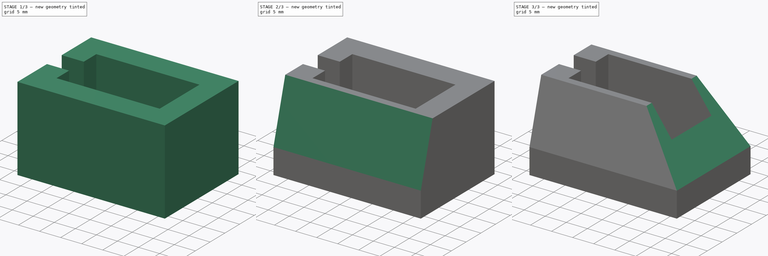
[diagram: build sequence overview — one tinted view per stage of 3, left to right]
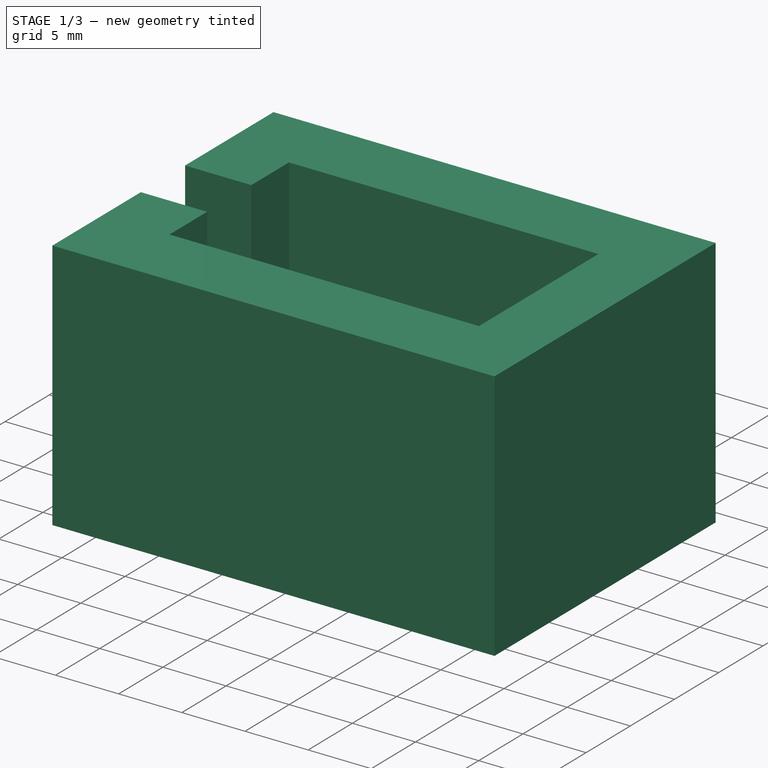
[diagram: stage 1 of 3 — iso view after this stage's code; geometry added in this stage tinted green]
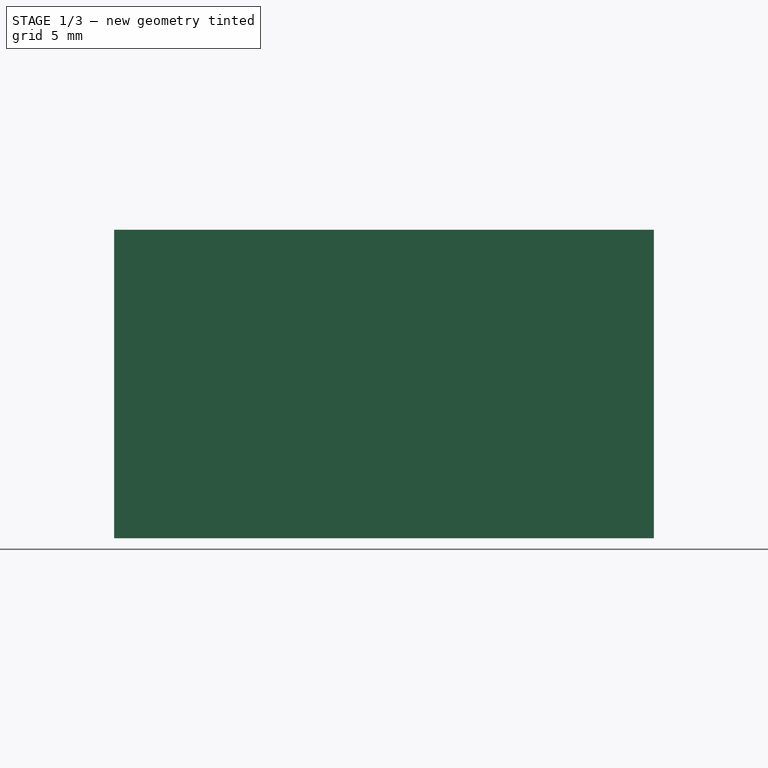
[diagram: stage 1 of 3 — front view after this stage's code; geometry added in this stage tinted green]
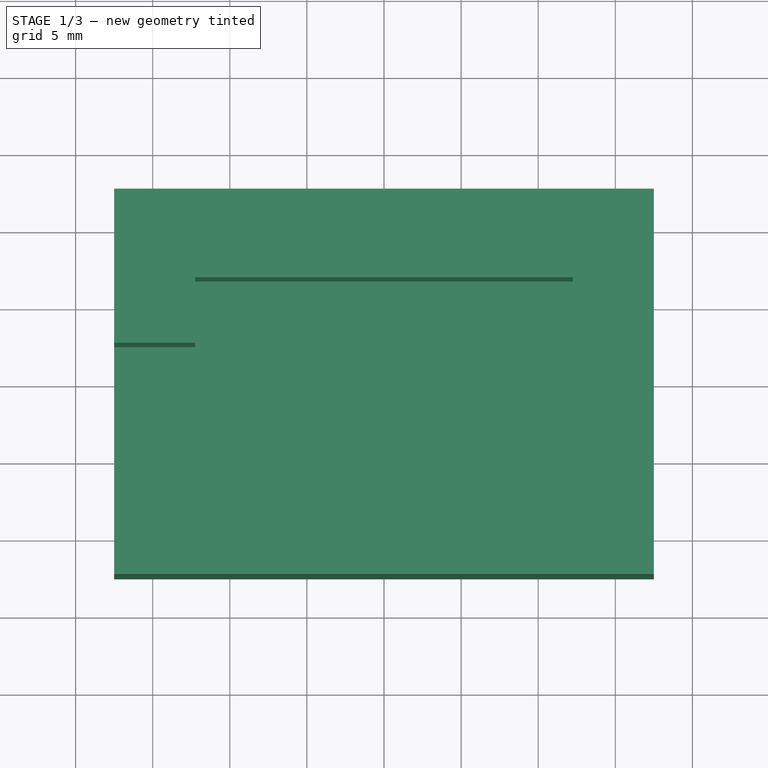
[diagram: stage 1 of 3 — top view after this stage's code; geometry added in this stage tinted green]
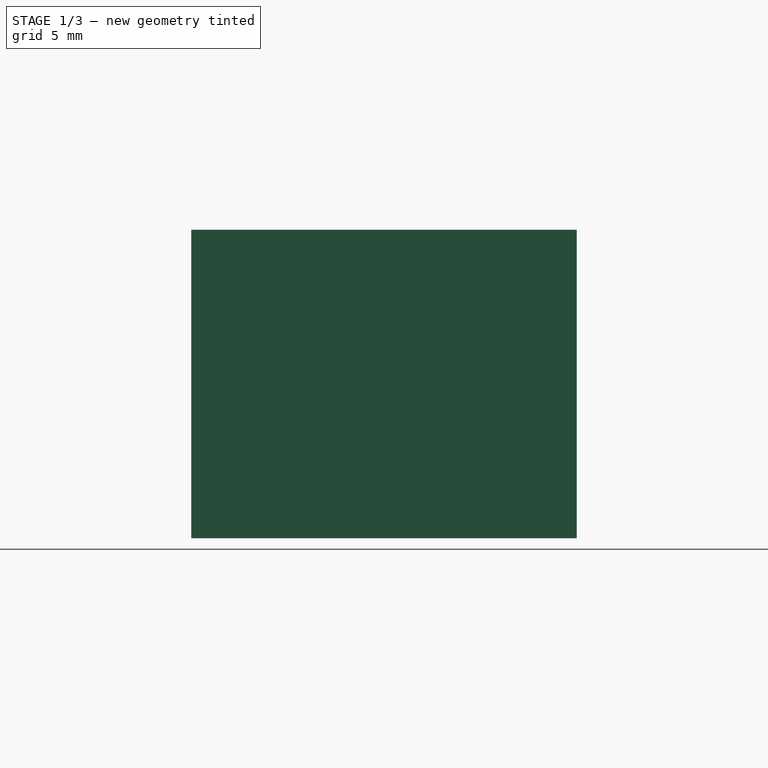
[diagram: stage 1 of 3 — right view after this stage's code; geometry added in this stage tinted green]
FCSTD DOCUMENT  (FreeCAD 1.0R39109 (Git))
Label: turret_base
License: All rights reserved
LicenseURL: https://en.wikipedia.org/wiki/All_rights_reserved
objects: Sketcher::SketchObject×3, PartDesign::Pocket×2, PartDesign::Chamfer×2, PartDesign::Pad×1, PartDesign::Body×1
note: 22 computed .brp shape members not serialized (recipe doc carries the construction recipe); baked Part::Feature solids carry a one-line shape summary decoded from their .brp

FEATURE [Sketcher::SketchObject] Sketch
  ArcFitTolerance = 1e-06
  AttachmentSupport = -> [XY_Plane]
  FullyConstrained = true
  MakeInternals = false
  MapMode = 5
  sketch-geometry (5):
    g0: LineSegment StartX=-17.5 StartY=-12.5 StartZ=0 EndX=17.5 EndY=-12.5 EndZ=0
    g1: LineSegment StartX=17.5 StartY=-12.5 StartZ=0 EndX=17.5 EndY=12.5 EndZ=0
    g2: LineSegment StartX=17.5 StartY=12.5 StartZ=0 EndX=-17.5 EndY=12.5 EndZ=0
    g3: LineSegment StartX=-17.5 StartY=12.5 StartZ=0 EndX=-17.5 EndY=-12.5 EndZ=0
    g4: GeomPoint [constr] X=0 Y=0 Z=0
  constraints (12):
    c: Coincident(g0,g1)
    c: Coincident(g1,g2)
    c: Coincident(g2,g3)
    c: Coincident(g3,g0)
    c: Horizontal(g0)
    c: Horizontal(g2)
    c: Vertical(g1)
    c: Vertical(g3)
    c: Symmetric(g2,g0,g4)
    c: Distance(g1,g3) = 35
    c: Distance(g0,g2) = 25
    c: Coincident(g4,g-1)
FEATURE [PartDesign::Pad] Pad
  Direction = (0,0,1)
  Length = 20
  Length2 = 10
  Profile = -> Sketch
  ReferenceAxis = -> Sketch [N_Axis]
  Refine = true
  Suppressed = false
  Type = 0
FEATURE [Sketcher::SketchObject] Sketch001
  ArcFitTolerance = 1e-06
  AttachmentSupport = -> [Pad]
  ExternalGeometry = -> [Pad]
  FullyConstrained = true
  MakeInternals = false
  MapMode = 5
  Placement = pos=(0,0,20) rot=(0,0,1;0rad)
  sketch-geometry (9):
    g0: LineSegment StartX=-12.25 StartY=-6.75 StartZ=0 EndX=12.25 EndY=-6.75 EndZ=0
    g1: LineSegment StartX=12.25 StartY=-6.75 StartZ=0 EndX=12.25 EndY=6.75 EndZ=0
    g2: LineSegment StartX=12.25 StartY=6.75 StartZ=0 EndX=-12.25 EndY=6.75 EndZ=0
    g3: LineSegment StartX=-12.25 StartY=6.75 StartZ=0 EndX=-12.25 EndY=2.5 EndZ=0
    g4: GeomPoint [constr] X=0 Y=0 Z=0
    g5: LineSegment StartX=-12.25 StartY=-2.5 StartZ=0 EndX=-12.25 EndY=-6.75 EndZ=0
    g6: LineSegment StartX=-12.25 StartY=2.5 StartZ=0 EndX=-17.5 EndY=2.5 EndZ=0
    g7: LineSegment StartX=-12.25 StartY=-2.5 StartZ=0 EndX=-17.5 EndY=-2.5 EndZ=0
    g8: LineSegment StartX=-17.5 StartY=2.5 StartZ=0 EndX=-17.5 EndY=-2.5 EndZ=0
  constraints (23):
    c: Coincident(g0,g1)
    c: Coincident(g1,g2)
    c: Coincident(g2,g3)
    c: Coincident(g5,g0)
    c: Horizontal(g0)
    c: Horizontal(g2)
    c: Vertical(g1)
    c: Vertical(g3)
    c: Symmetric(g2,g0,g4)
    c: Distance(g1,g5) = 24.5
    c: Distance(g0,g2) = 13.5
    c: Symmetric(g5,g3,g-1)
    c: Vertical(g5)
    c: Coincident(g4,g-1)
    c: Coincident(g6,g3)
    c: PointOnObject(g6,g-3)
    c: Horizontal(g6)
    c: Coincident(g7,g5)
    c: PointOnObject(g7,g-3)
    c: Horizontal(g7)
    c: Coincident(g8,g6)
    c: Coincident(g8,g7)
    c: DistanceY(g8,g8) = 5
FEATURE [PartDesign::Pocket] Pocket
  BaseFeature = -> Pad
  Direction = (0,0,-1)
  Length = 16
  Length2 = 5
  Profile = -> Sketch001
  ReferenceAxis = -> Sketch001 [N_Axis]
  Refine = true
  Suppressed = false
  Type = 0
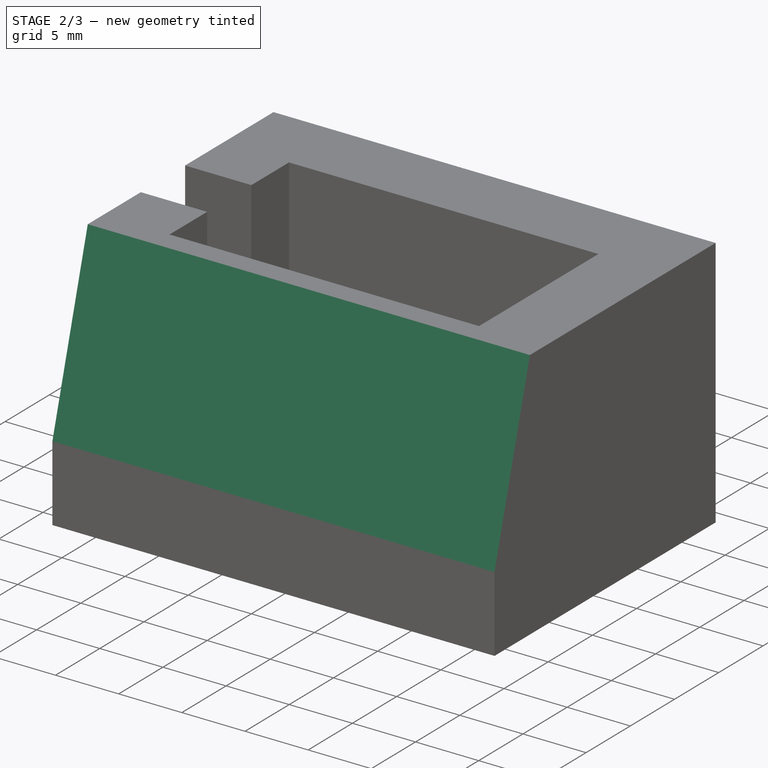
[diagram: stage 2 of 3 — iso view after this stage's code; geometry added in this stage tinted green]
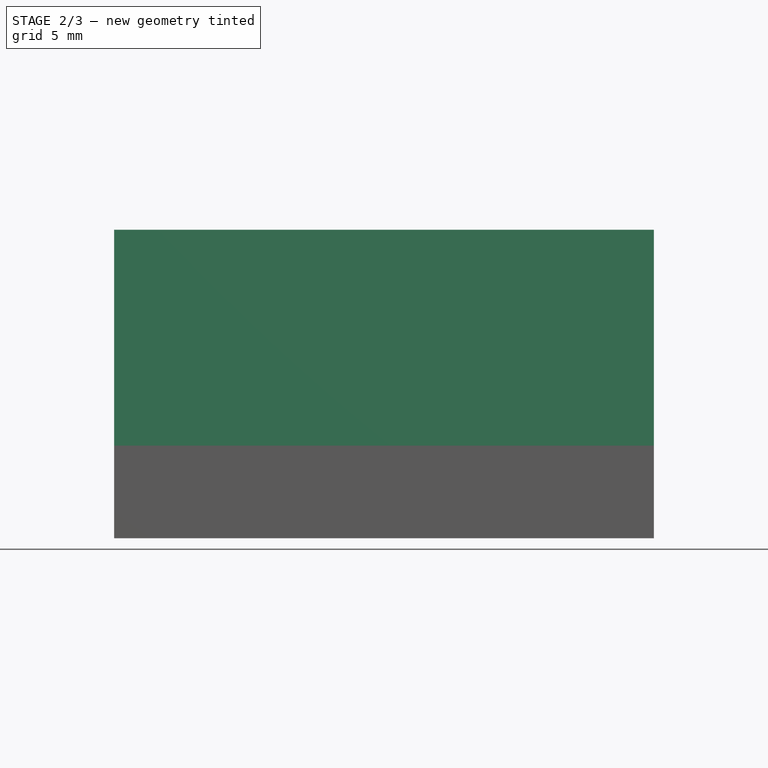
[diagram: stage 2 of 3 — front view after this stage's code; geometry added in this stage tinted green]
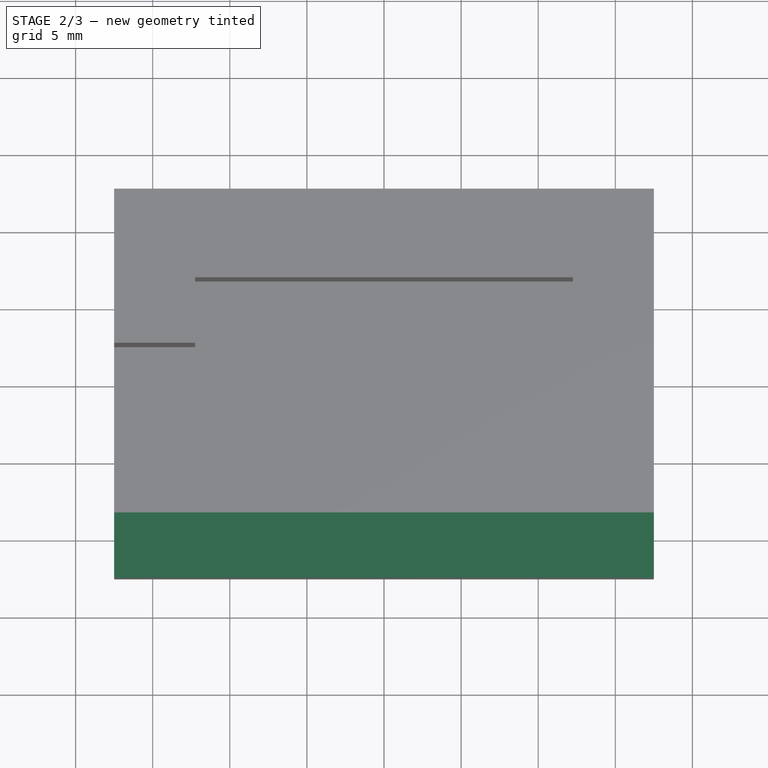
[diagram: stage 2 of 3 — top view after this stage's code; geometry added in this stage tinted green]
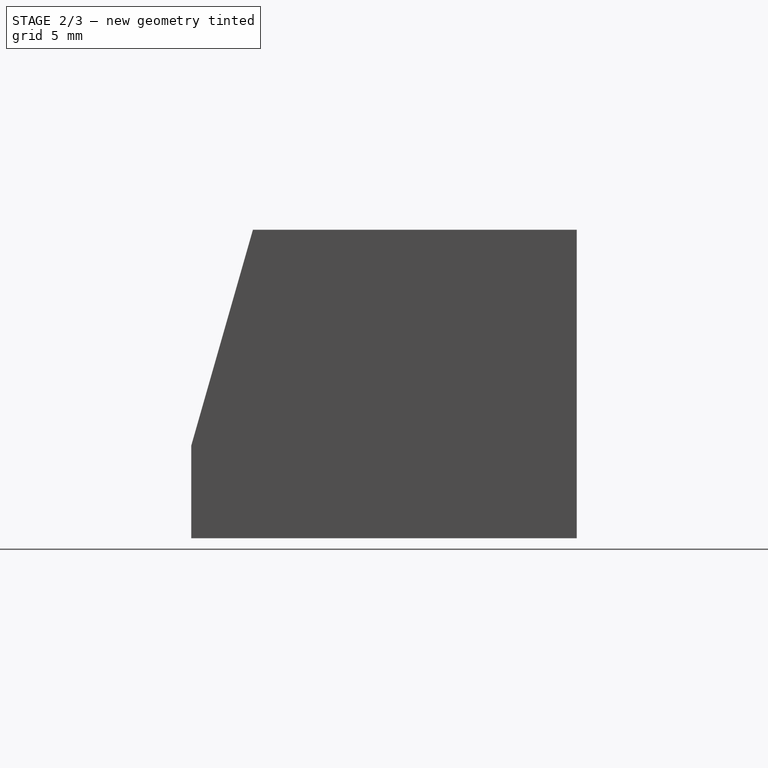
[diagram: stage 2 of 3 — right view after this stage's code; geometry added in this stage tinted green]
FEATURE [PartDesign::Chamfer] Chamfer
  Angle = 45
  Base = -> Pocket [Edge4]
  BaseFeature = -> Pocket
  ChamferType = 1
  FlipDirection = true
  Refine = true
  Size = 4
  Size2 = 14
  SupportTransform = false
  Suppressed = false
  UseAllEdges = false
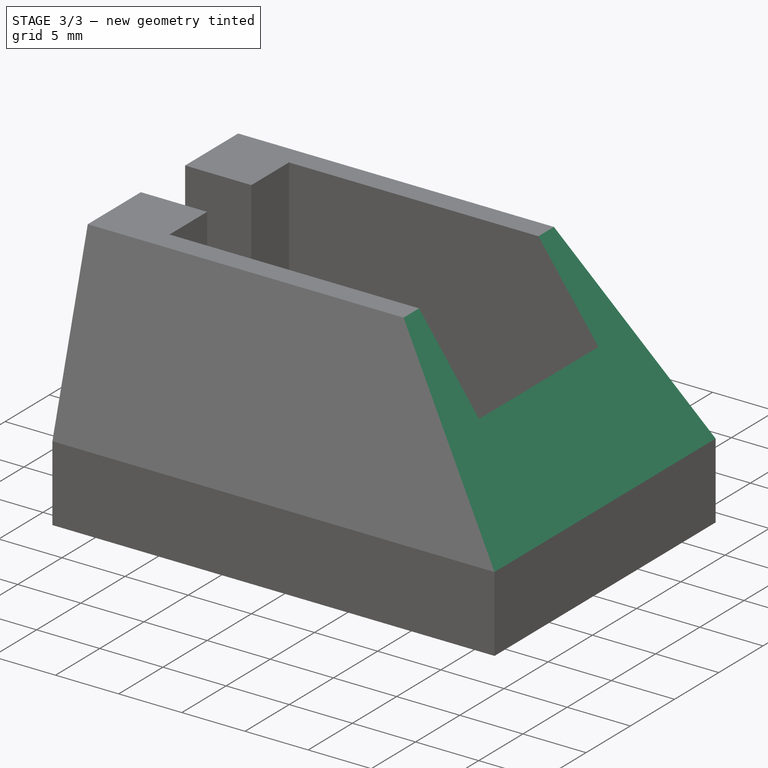
[diagram: stage 3 of 3 — iso view after this stage's code; geometry added in this stage tinted green]
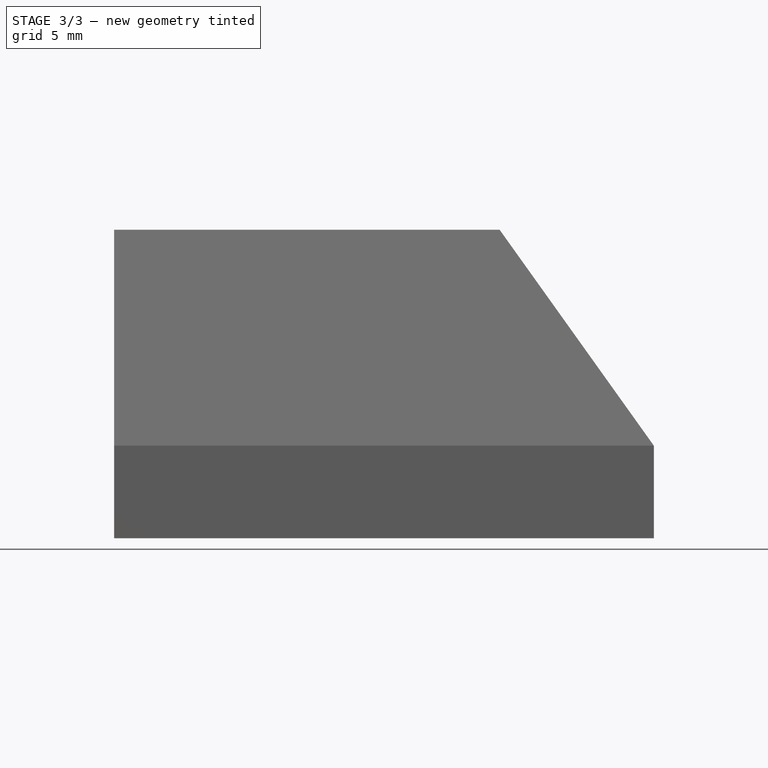
[diagram: stage 3 of 3 — front view after this stage's code; geometry added in this stage tinted green]
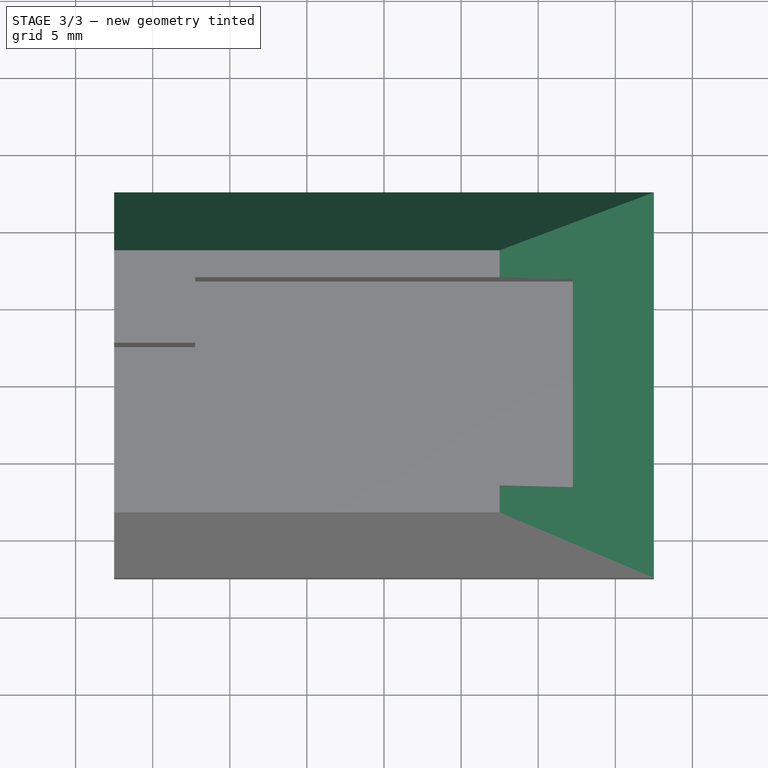
[diagram: stage 3 of 3 — top view after this stage's code; geometry added in this stage tinted green]
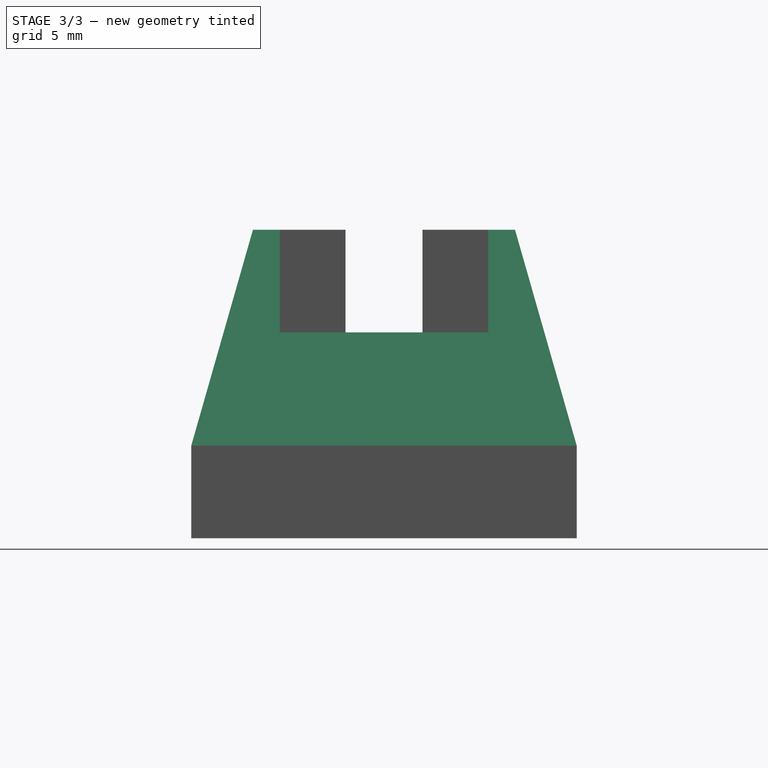
[diagram: stage 3 of 3 — right view after this stage's code; geometry added in this stage tinted green]
FEATURE [PartDesign::Chamfer] Chamfer001
  Angle = 45
  Base = -> Chamfer [Edge21]
  BaseFeature = -> Chamfer
  ChamferType = 1
  FlipDirection = false
  Refine = true
  Size = 4
  Size2 = 14
  SupportTransform = false
  Suppressed = false
  UseAllEdges = false
FEATURE [Sketcher::SketchObject] Sketch002
  ArcFitTolerance = 1e-06
  AttachmentSupport = -> [Chamfer001]
  ExternalGeometry = -> [Chamfer001]
  FullyConstrained = true
  MakeInternals = false
  MapMode = 5
  Placement = pos=(0,-12.5,0) rot=(1,0,0;1.5708rad)
  sketch-geometry (3):
    g0: LineSegment StartX=7.5 StartY=20 StartZ=0 EndX=17.5 EndY=20 EndZ=0
    g1: LineSegment StartX=17.5 StartY=20 StartZ=0 EndX=17.5 EndY=6 EndZ=0
    g2: LineSegment StartX=7.5 StartY=20 StartZ=0 EndX=17.5 EndY=6 EndZ=0
  constraints (7):
    c: PointOnObject(g0,g-4)
    c: Coincident(g0,g-4)
    c: DistanceX(g0,g0) = 10
    c: Coincident(g1,g0)
    c: Coincident(g1,g-5)
    c: Coincident(g2,g0)
    c: Coincident(g2,g1)
FEATURE [PartDesign::Pocket] Pocket001
  BaseFeature = -> Chamfer001
  Direction = (0,1,-2e-16)
  Length = 5
  Length2 = 5
  Profile = -> Sketch002
  ReferenceAxis = -> Sketch002 [N_Axis]
  Refine = true
  Suppressed = false
  Type = 1
FEATURE [PartDesign::Body] Body
  AllowCompound = false
  Group = -> [Sketch,Pad,Sketch001,Pocket,Chamfer,Chamfer001,Sketch002,Pocket001]
  Origin = -> Origin
  Tip = -> Pocket001
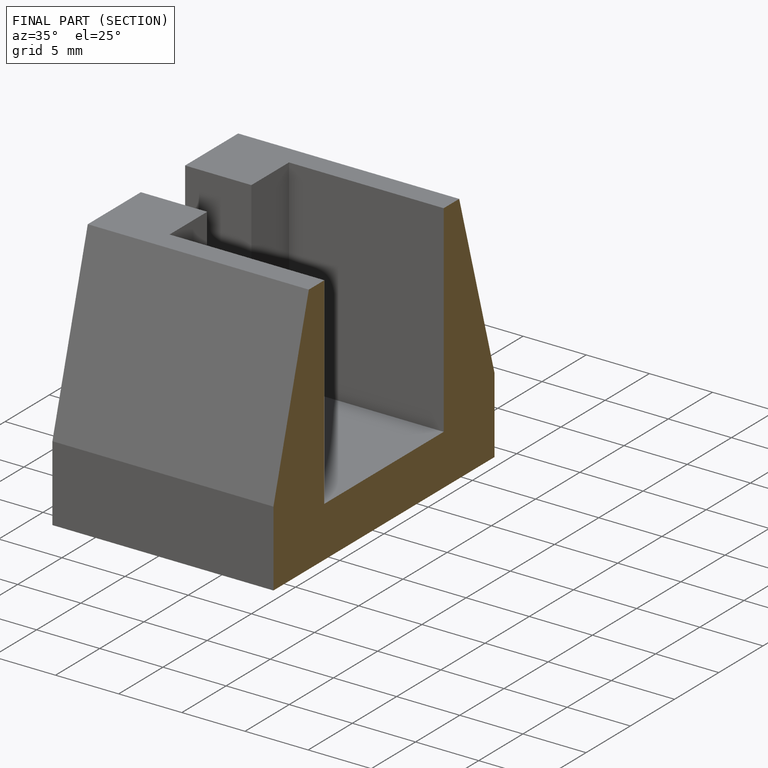
[diagram: finished part — half-section view (interior)]
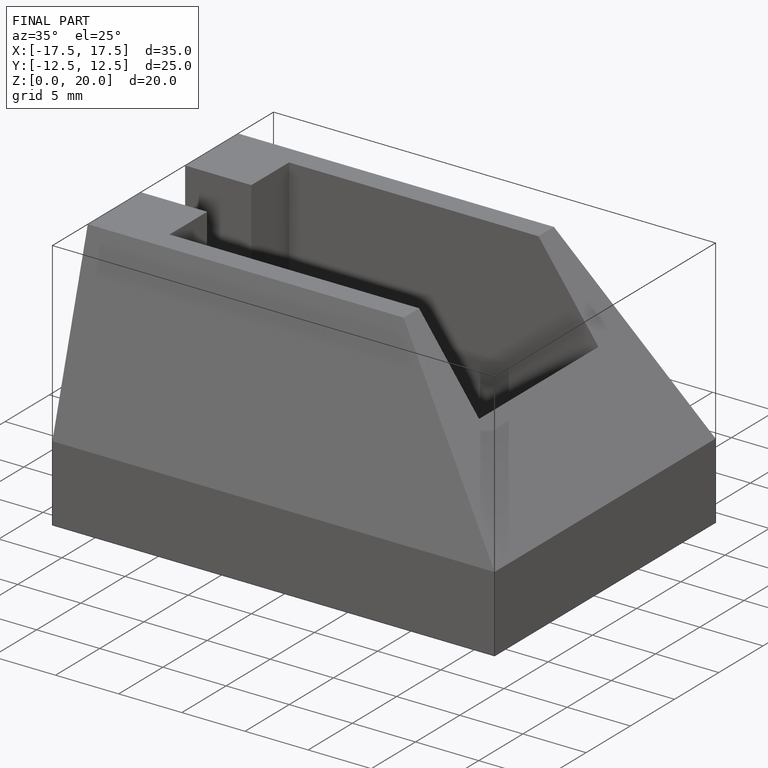
[diagram: finished part — iso view with bounding-box wireframe]
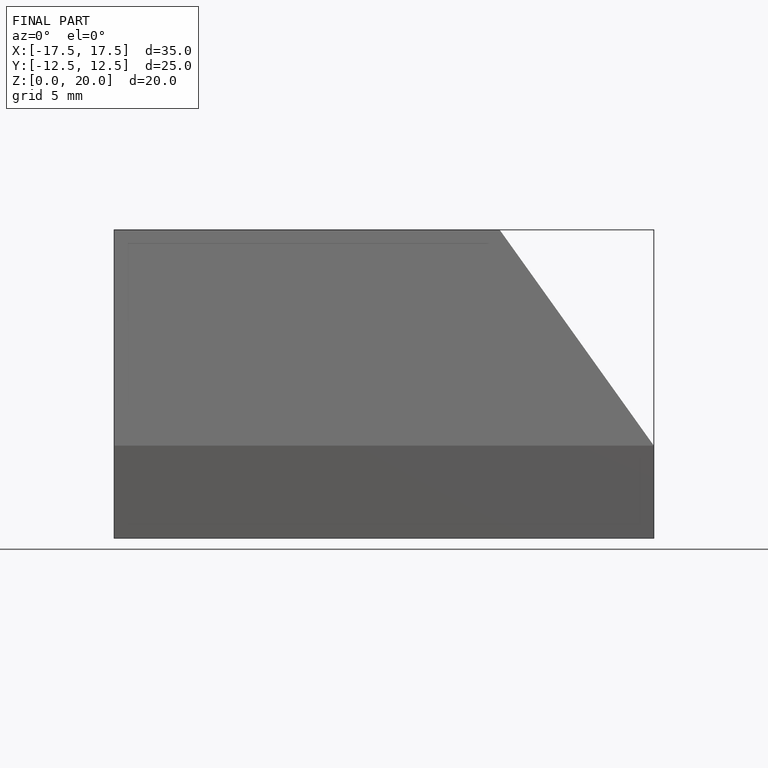
[diagram: finished part — front view with bounding-box wireframe]
